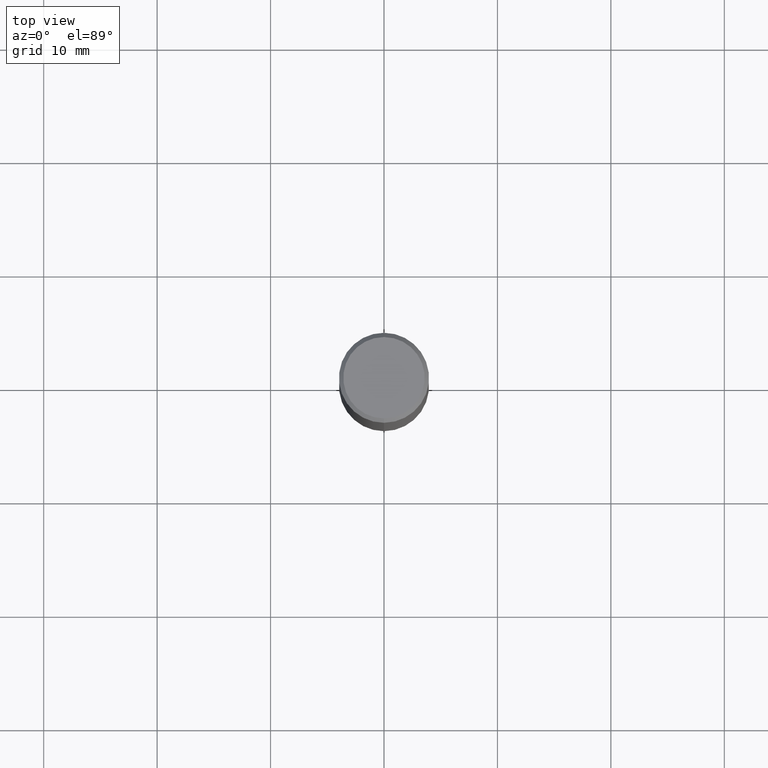
[diagram: clean part render]
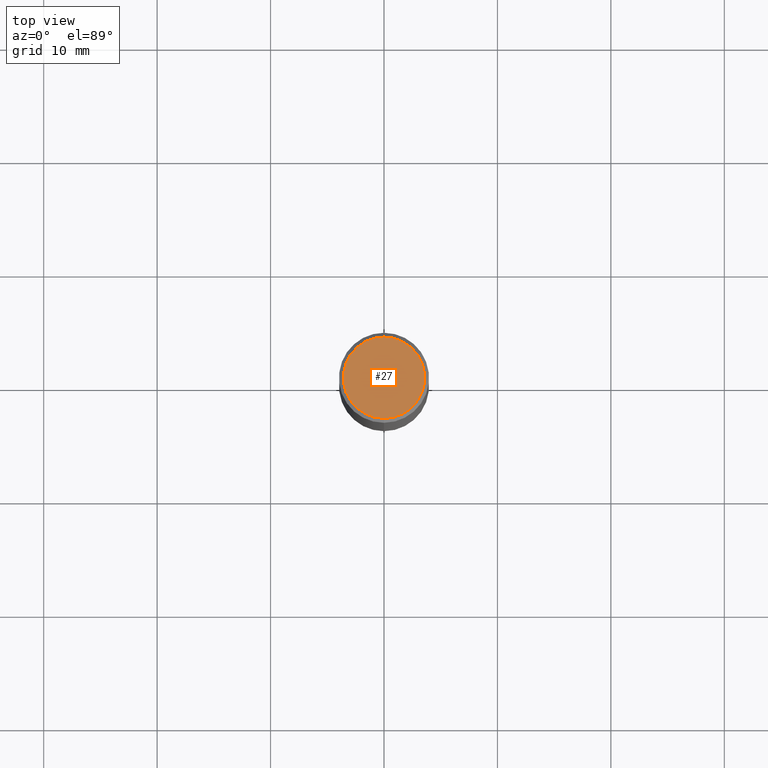
[diagram: same view with one face highlighted and labeled with its STEP entity id]
A machine part, top view. The second image highlights one B-rep face of the part: STEP entity #27.
In plain terms, the highlighted planar face has unit normal (0, -0, -1).
Its self-contained STEP definition (entity closure, byte-faithful):
#5 = CIRCLE ( 'NONE', #304, 0.1412499999999999867 ) ;
#20 = ORIENTED_EDGE ( 'NONE', *, *, #67, .T. ) ;
#25 = EDGE_LOOP ( 'NONE', ( #430, #20 ) ) ;
#27 = ADVANCED_FACE ( 'NONE', ( #182 ), #410, .F. ) ;
#54 = DIRECTION ( 'NONE',  ( 2.445343774695751829E-29, -3.491660391052294645E-15, -1.000000000000000000 ) ) ;
#67 = EDGE_CURVE ( 'NONE', #248, #235, #5, .T. ) ;
#69 = EDGE_CURVE ( 'NONE', #235, #248, #493, .T. ) ;
#135 = CARTESIAN_POINT ( 'NONE',  ( -7.821174033303123404E-46, 1.116770732450859065E-31, 3.198394481068915622E-17 ) ) ;
#139 = CARTESIAN_POINT ( 'NONE',  ( 9.863434782231850151E-16, 0.1412499999999999867, -4.772050578307920773E-16 ) ) ;
#148 = CARTESIAN_POINT ( 'NONE',  ( 1.038715698305832292E-15, 0.1412499999999999867, -4.612130854254474684E-16 ) ) ;
#182 = FACE_OUTER_BOUND ( 'NONE', #25, .T. ) ;
#217 = DIRECTION ( 'NONE',  ( -2.445343774695752109E-29, 3.491660391052294645E-15, 1.000000000000000000 ) ) ;
#235 = VERTEX_POINT ( 'NONE', #148 ) ;
#248 = VERTEX_POINT ( 'NONE', #343 ) ;
#253 = CARTESIAN_POINT ( 'NONE',  ( -7.821174033303123404E-46, 1.116770732450859065E-31, 3.198394481068915622E-17 ) ) ;
#256 = DIRECTION ( 'NONE',  ( -2.445343774695752109E-29, 3.491660391052294645E-15, 1.000000000000000000 ) ) ;
#260 = DIRECTION ( 'NONE',  ( 6.982962677686265922E-15, 1.000000000000000000, -3.491660391052294645E-15 ) ) ;
#304 = AXIS2_PLACEMENT_3D ( 'NONE', #253, #217, #478 ) ;
#328 = DIRECTION ( 'NONE',  ( -6.982962677686265922E-15, -1.000000000000000000, 3.491660391052294645E-15 ) ) ;
#343 = CARTESIAN_POINT ( 'NONE',  ( -1.020499077168515012E-15, -0.1412499999999999867, 5.251809750468258055E-16 ) ) ;
#410 = PLANE ( 'NONE',  #434 ) ;
#430 = ORIENTED_EDGE ( 'NONE', *, *, #69, .T. ) ;
#434 = AXIS2_PLACEMENT_3D ( 'NONE', #139, #54, #260 ) ;
#478 = DIRECTION ( 'NONE',  ( -6.982962677686265922E-15, -1.000000000000000000, 3.491660391052294645E-15 ) ) ;
#493 = CIRCLE ( 'NONE', #504, 0.1412499999999999867 ) ;
#504 = AXIS2_PLACEMENT_3D ( 'NONE', #135, #256, #328 ) ;